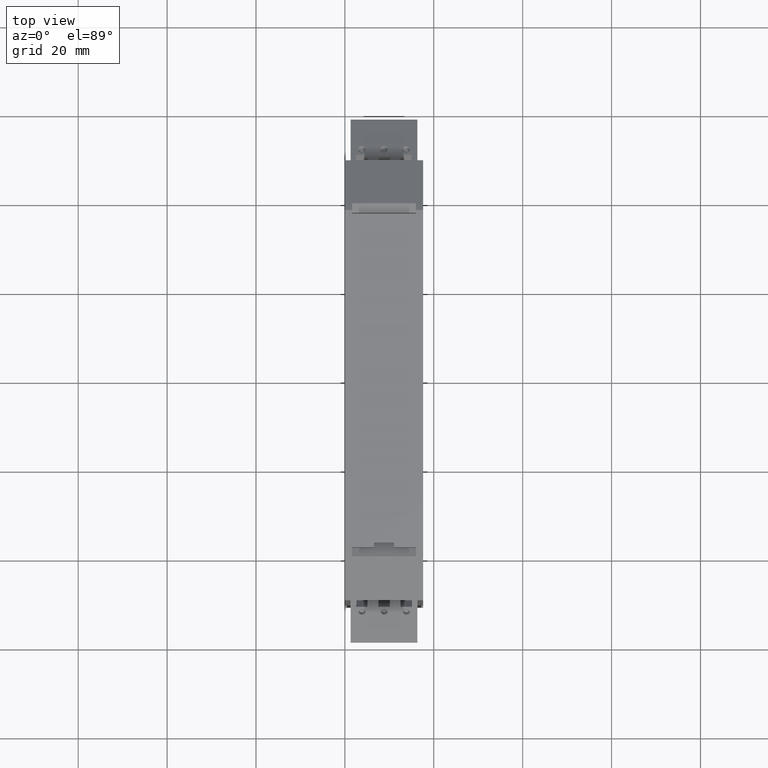
[diagram: clean part render]
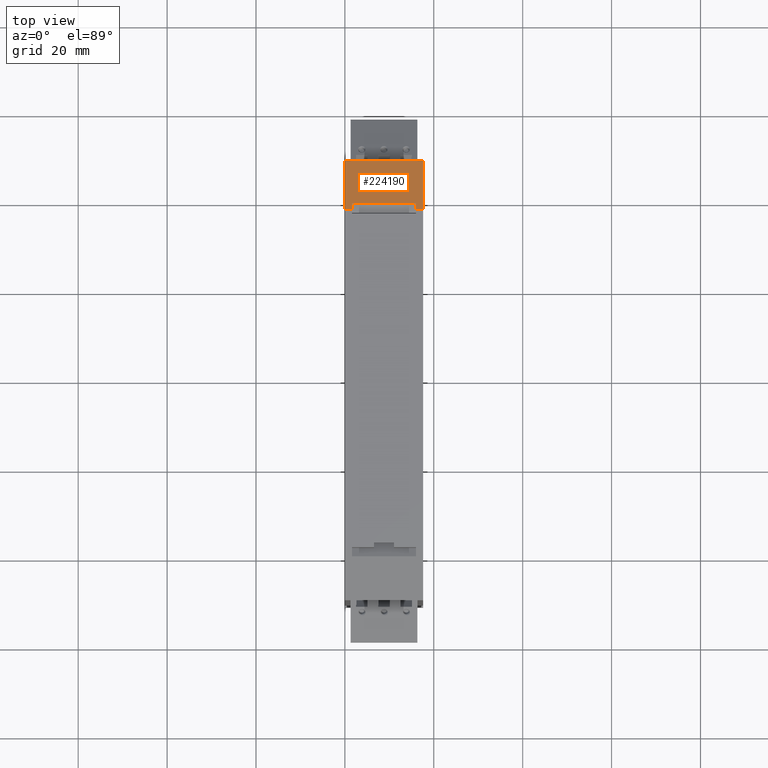
[diagram: same view with one face highlighted and labeled with its STEP entity id]
A machine part, top view. The second image highlights one B-rep face of the part: STEP entity #224190.
In plain terms, the highlighted planar face has unit normal (-0, -0.5446, -0.8387).
Its self-contained STEP definition (entity closure, byte-faithful):
#190190=CARTESIAN_POINT('',(-5.00000077734406,105.864347832024,
106.3116941965));
#190200=VERTEX_POINT('',#190190);
#190230=CARTESIAN_POINT('',(-5.00000077734407,57.1813063842951,
137.926830972738));
#190240=DIRECTION('',(-1.87246101097871E-16,-0.838670567944371,
0.544639035016649));
#190250=VECTOR('',#190240,1.);
#190260=LINE('',#190230,#190250);
#190270=CARTESIAN_POINT('',(-5.00000077734406,94.5643478317183,
113.649999999861));
#190280=VERTEX_POINT('',#190270);
#190290=EDGE_CURVE('',#190200,#190280,#190260,.T.);
#193130=CARTESIAN_POINT('',(12.5999992226559,94.5643478317183,
113.649999999861));
#193140=VERTEX_POINT('',#193130);
#193170=CARTESIAN_POINT('',(12.5999992226559,56.3643478317735,
138.457370060075));
#193180=DIRECTION('',(-6.71521645989226E-19,-0.838670567944371,
0.544639035016649));
#193190=VECTOR('',#193180,1.);
#193200=LINE('',#193170,#193190);
#193210=CARTESIAN_POINT('',(12.5999992226559,105.864347832024,
106.3116941965));
#193220=VERTEX_POINT('',#193210);
#193230=EDGE_CURVE('',#193220,#193140,#193200,.T.);
#215480=CARTESIAN_POINT('',(3.79999922312159,105.864347831485,
106.31169419685));
#215490=DIRECTION('',(1.,-2.24748522192808E-16,-2.28384227764923E-18));
#215500=VECTOR('',#215490,1.);
#215510=LINE('',#215480,#215500);
#215520=EDGE_CURVE('',#190200,#193220,#215510,.T.);
#223580=CARTESIAN_POINT('',(3.79999922312159,94.5643478317183,
113.649999999861));
#223590=DIRECTION('',(1.,-2.24748522192808E-16,-2.28384227764925E-18));
#223600=VECTOR('',#223590,1.);
#223610=LINE('',#223580,#223600);
#223620=CARTESIAN_POINT('',(-3.40000077725654,94.5643478317182,
113.649999999861));
#223630=VERTEX_POINT('',#223620);
#223640=EDGE_CURVE('',#190280,#223630,#223610,.T.);
#223820=CARTESIAN_POINT('',(-5.00000077734406,105.864347831485,
106.31169419685));
#223830=DIRECTION('',(-1.243222095486E-16,-0.544639035016649,
-0.838670567944371));
#223840=DIRECTION('',(1.87246101097871E-16,0.838670567944371,
-0.544639035016649));
#223850=AXIS2_PLACEMENT_3D('',#223820,#223830,#223840);
#223860=PLANE('',#223850);
#223870=CARTESIAN_POINT('',(10.9999992226534,56.3643478317735,
138.457370060075));
#223880=DIRECTION('',(-1.67204975339763E-16,-0.838670567944371,
0.544639035016649));
#223890=VECTOR('',#223880,1.);
#223900=LINE('',#223870,#223890);
#223910=CARTESIAN_POINT('',(10.9999992226534,96.074320663239,
112.669412177546));
#223920=VERTEX_POINT('',#223910);
#223930=CARTESIAN_POINT('',(10.9999992226534,94.5643478317182,
113.649999999861));
#223940=VERTEX_POINT('',#223930);
#223950=EDGE_CURVE('',#223920,#223940,#223900,.T.);
#223960=ORIENTED_EDGE('',*,*,#223950,.T.);
#223970=CARTESIAN_POINT('',(3.79999922312159,96.074320663239,
112.669412177546));
#223980=DIRECTION('',(1.,-2.25840977576819E-16,-1.57439345603996E-18));
#223990=VECTOR('',#223980,1.);
#224000=LINE('',#223970,#223990);
#224010=CARTESIAN_POINT('',(-3.40000077725654,96.074320663239,
112.669412177546));
#224020=VERTEX_POINT('',#224010);
#224030=EDGE_CURVE('',#224020,#223920,#224000,.T.);
#224040=ORIENTED_EDGE('',*,*,#224030,.T.);
#224050=CARTESIAN_POINT('',(-3.40000077725655,56.3643478317735,
138.457370060075));
#224060=DIRECTION('',(-1.67204975339763E-16,-0.838670567944371,
0.544639035016649));
#224070=VECTOR('',#224060,1.);
#224080=LINE('',#224050,#224070);
#224090=EDGE_CURVE('',#224020,#223630,#224080,.T.);
#224100=ORIENTED_EDGE('',*,*,#224090,.F.);
#224110=ORIENTED_EDGE('',*,*,#223640,.T.);
#224120=ORIENTED_EDGE('',*,*,#190290,.T.);
#224130=ORIENTED_EDGE('',*,*,#215520,.F.);
#224140=ORIENTED_EDGE('',*,*,#193230,.F.);
#224150=EDGE_CURVE('',#223940,#193140,#223610,.T.);
#224160=ORIENTED_EDGE('',*,*,#224150,.T.);
#224170=EDGE_LOOP('',(#224160,#224140,#224130,#224120,#224110,#224100,
#224040,#223960));
#224180=FACE_OUTER_BOUND('',#224170,.T.);
#224190=ADVANCED_FACE('',(#224180),#223860,.F.);